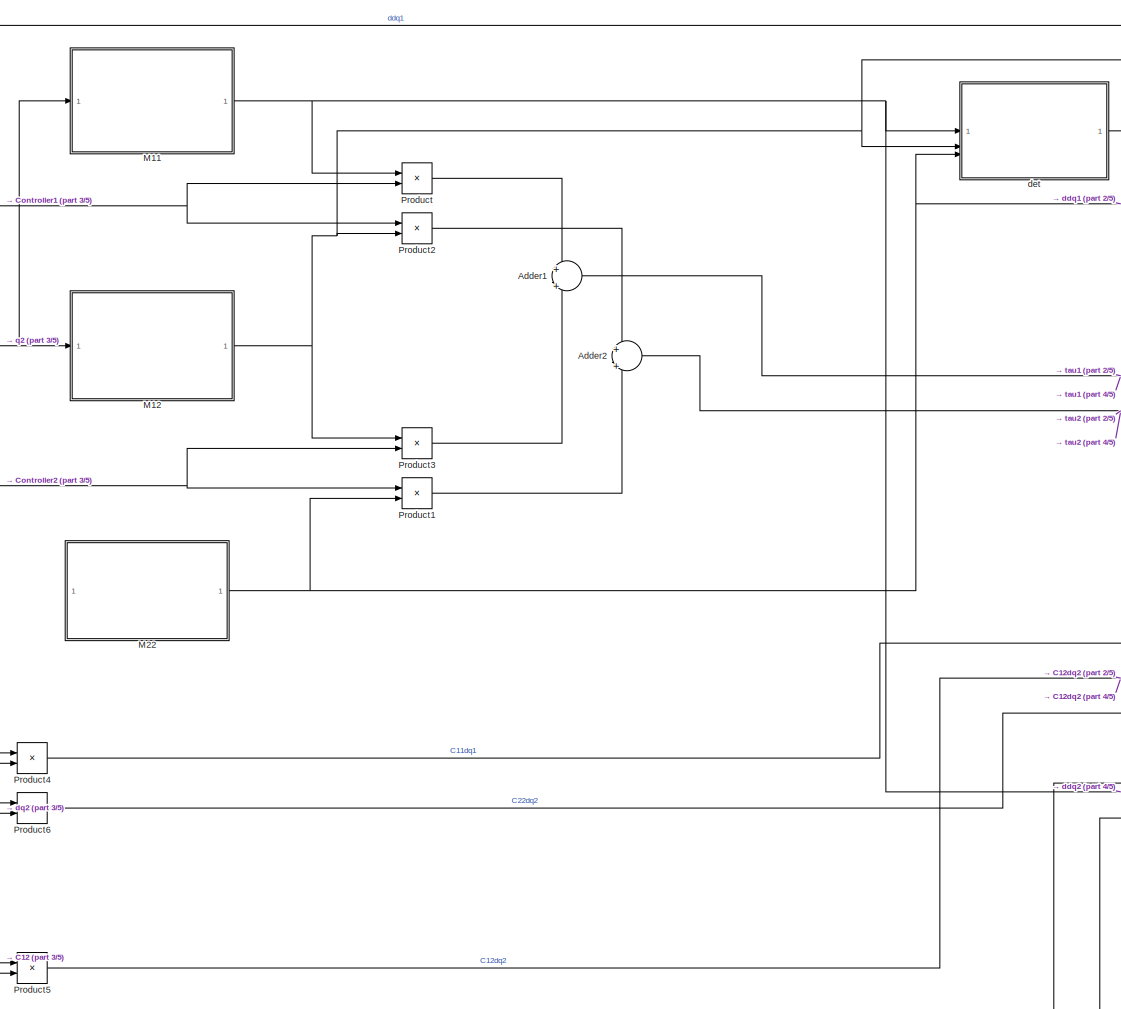
[diagram: root canvas - part 1/5, center side, full height]
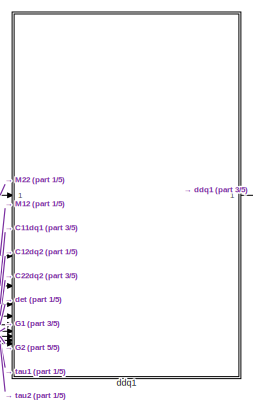
[diagram: root canvas - part 2/5, top right region]
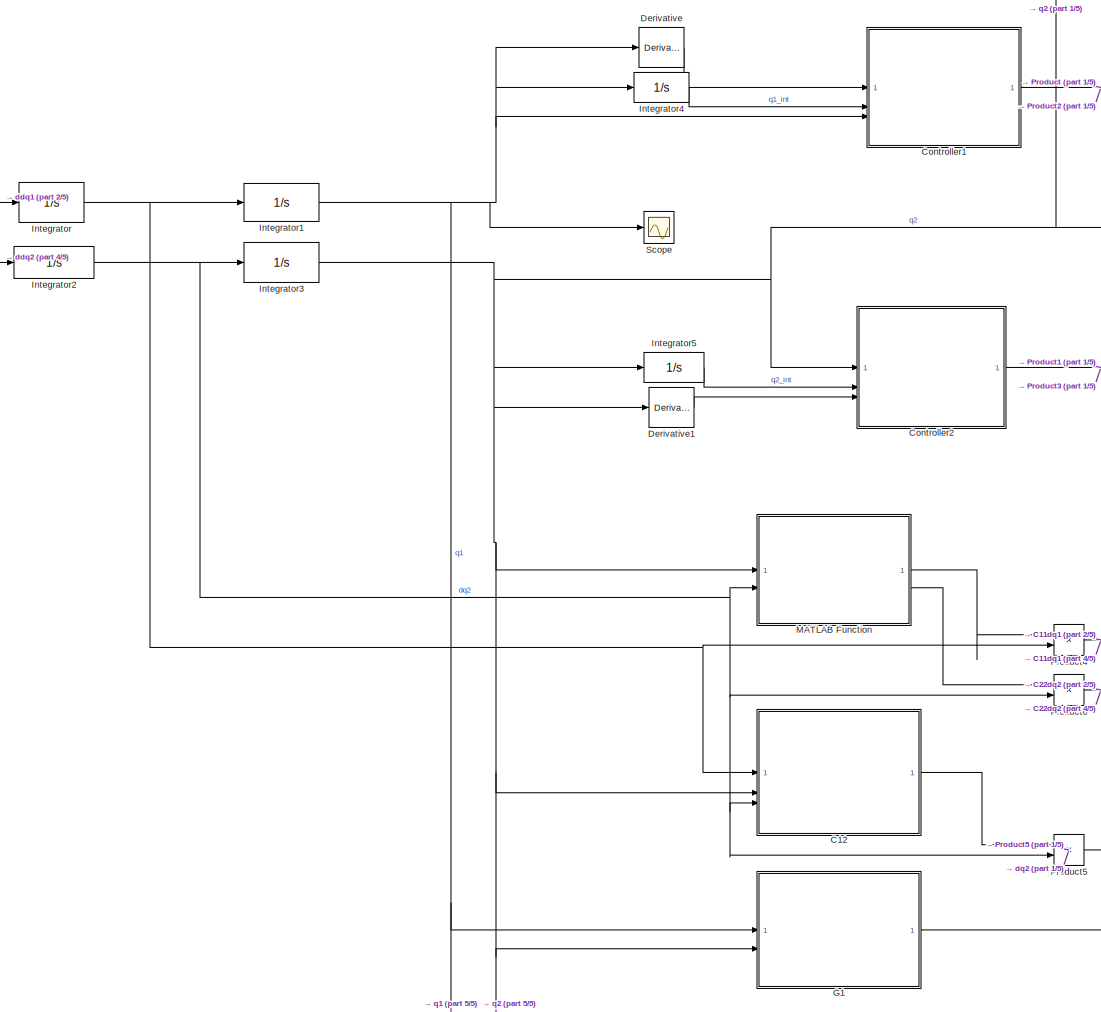
[diagram: root canvas - part 3/5, left side, full height]
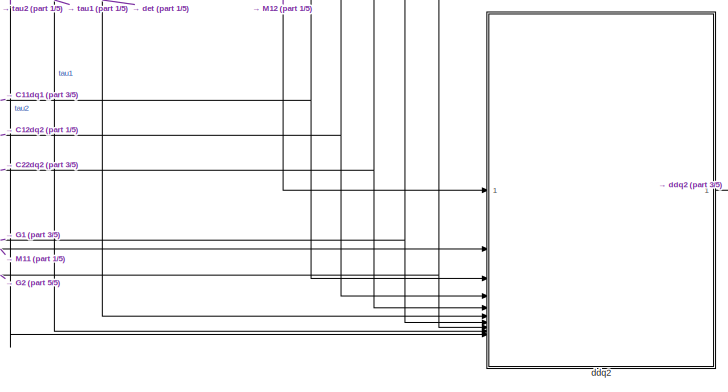
[diagram: root canvas - part 4/5, middle right region]
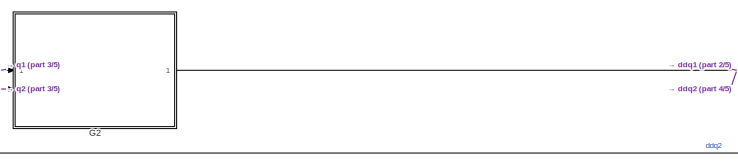
[diagram: root canvas - part 5/5, bottom center region]
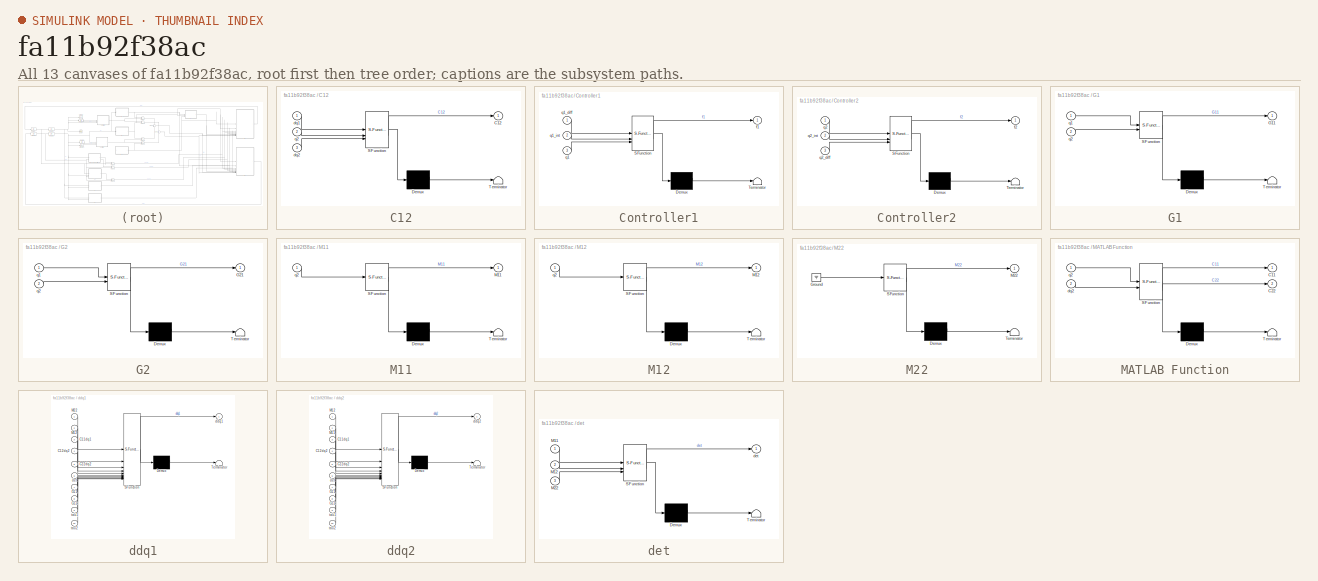
[diagram: thumbnail index - all 13 canvases of the model, root first then tree order]
MODEL slx_fa11b92f38ac
KIND model
CONFIG AbsTol = auto
CONFIG EnableMultiTasking = off
CONFIG FixedStep = auto
CONFIG MaxStep = auto
CONFIG MinStep = auto
CONFIG RelTol = 1e-3
CONFIG SampleTimeConstraint = Unconstrained
CONFIG SolverName = VariableStepAuto
CONFIG StartTime = 0.0
CONFIG StopTime = 10
BLOCK [Sum] Adder1
  Inputs = +|+
BLOCK [Sum] Adder2
  Inputs = +|+
BLOCK [SubSystem] C12
  ErrorFcn = Stateflow.Translate.translate
  PermitHierarchicalResolution = ExplicitOnly
  SFBlockType = MATLAB Function
  TreatAsAtomicUnit = on
BLOCK [Demux] C12/ Demux 
  Outputs = 1
BLOCK [S-Function] C12/ SFunction 
  EnableBusSupport = on
  FunctionName = sf_sfun
  PortCounts = [3 2]
  SFcnIsStateOwnerBlock = off
  SFunctionDeploymentMode = off
  Tag = Stateflow S-Function 5
BLOCK [Terminator] C12/ Terminator 
BLOCK [Outport] C12/C12
BLOCK [Inport] C12/dq1
BLOCK [Inport] C12/dq2
  Port = 3
BLOCK [Inport] C12/q2
  Port = 2
BLOCK [SubSystem] Controller1
  ErrorFcn = Stateflow.Translate.translate
  PermitHierarchicalResolution = ExplicitOnly
  SFBlockType = MATLAB Function
  TreatAsAtomicUnit = on
BLOCK [Demux] Controller1/ Demux 
  Outputs = 1
BLOCK [S-Function] Controller1/ SFunction 
  EnableBusSupport = on
  FunctionName = sf_sfun
  PortCounts = [3 2]
  SFcnIsStateOwnerBlock = off
  SFunctionDeploymentMode = off
  Tag = Stateflow S-Function 8
BLOCK [Terminator] Controller1/ Terminator 
BLOCK [Outport] Controller1/f1
BLOCK [Inport] Controller1/q1
  Port = 3
BLOCK [Inport] Controller1/q1_diff
BLOCK [Inport] Controller1/q1_int
  Port = 2
BLOCK [SubSystem] Controller2
  ErrorFcn = Stateflow.Translate.translate
  PermitHierarchicalResolution = ExplicitOnly
  SFBlockType = MATLAB Function
  TreatAsAtomicUnit = on
BLOCK [Demux] Controller2/ Demux 
  Outputs = 1
BLOCK [S-Function] Controller2/ SFunction 
  EnableBusSupport = on
  FunctionName = sf_sfun
  PortCounts = [3 2]
  SFcnIsStateOwnerBlock = off
  SFunctionDeploymentMode = off
  Tag = Stateflow S-Function 9
BLOCK [Terminator] Controller2/ Terminator 
BLOCK [Outport] Controller2/f2
BLOCK [Inport] Controller2/q2
BLOCK [Inport] Controller2/q2_diff
  Port = 3
BLOCK [Inport] Controller2/q2_int
  Port = 2
BLOCK [Derivative] Derivative
BLOCK [Derivative] Derivative1
BLOCK [SubSystem] G1
  ErrorFcn = Stateflow.Translate.translate
  PermitHierarchicalResolution = ExplicitOnly
  SFBlockType = MATLAB Function
  TreatAsAtomicUnit = on
BLOCK [Demux] G1/ Demux 
  Outputs = 1
BLOCK [S-Function] G1/ SFunction 
  EnableBusSupport = on
  FunctionName = sf_sfun
  PortCounts = [2 2]
  SFcnIsStateOwnerBlock = off
  SFunctionDeploymentMode = off
  Tag = Stateflow S-Function 6
BLOCK [Terminator] G1/ Terminator 
BLOCK [Outport] G1/G11
BLOCK [Inport] G1/q1
BLOCK [Inport] G1/q2
  Port = 2
BLOCK [SubSystem] G2
  ErrorFcn = Stateflow.Translate.translate
  PermitHierarchicalResolution = ExplicitOnly
  SFBlockType = MATLAB Function
  TreatAsAtomicUnit = on
BLOCK [Demux] G2/ Demux 
  Outputs = 1
BLOCK [S-Function] G2/ SFunction 
  EnableBusSupport = on
  FunctionName = sf_sfun
  PortCounts = [2 2]
  SFcnIsStateOwnerBlock = off
  SFunctionDeploymentMode = off
  Tag = Stateflow S-Function 7
BLOCK [Terminator] G2/ Terminator 
BLOCK [Outport] G2/G21
BLOCK [Inport] G2/q1
BLOCK [Inport] G2/q2
  Port = 2
BLOCK [Integrator] Integrator
BLOCK [Integrator] Integrator1
  InitialCondition = 0.1
BLOCK [Integrator] Integrator2
BLOCK [Integrator] Integrator3
  InitialCondition = 0.1
BLOCK [Integrator] Integrator4
BLOCK [Integrator] Integrator5
BLOCK [SubSystem] M11
  ErrorFcn = Stateflow.Translate.translate
  PermitHierarchicalResolution = ExplicitOnly
  SFBlockType = MATLAB Function
  TreatAsAtomicUnit = on
BLOCK [Demux] M11/ Demux 
  Outputs = 1
BLOCK [S-Function] M11/ SFunction 
  EnableBusSupport = on
  FunctionName = sf_sfun
  PortCounts = [1 2]
  SFcnIsStateOwnerBlock = off
  SFunctionDeploymentMode = off
  Tag = Stateflow S-Function 2
BLOCK [Terminator] M11/ Terminator 
BLOCK [Outport] M11/M11
BLOCK [Inport] M11/q2
BLOCK [SubSystem] M12
  ErrorFcn = Stateflow.Translate.translate
  PermitHierarchicalResolution = ExplicitOnly
  SFBlockType = MATLAB Function
  TreatAsAtomicUnit = on
BLOCK [Demux] M12/ Demux 
  Outputs = 1
BLOCK [S-Function] M12/ SFunction 
  EnableBusSupport = on
  FunctionName = sf_sfun
  PortCounts = [1 2]
  SFcnIsStateOwnerBlock = off
  SFunctionDeploymentMode = off
  Tag = Stateflow S-Function 1
BLOCK [Terminator] M12/ Terminator 
BLOCK [Outport] M12/M12
BLOCK [Inport] M12/q2
BLOCK [SubSystem] M22
  ErrorFcn = Stateflow.Translate.translate
  PermitHierarchicalResolution = ExplicitOnly
  SFBlockType = MATLAB Function
  TreatAsAtomicUnit = on
BLOCK [Demux] M22/ Demux 
  Outputs = 1
BLOCK [Ground] M22/ Ground 
BLOCK [S-Function] M22/ SFunction 
  EnableBusSupport = on
  FunctionName = sf_sfun
  PortCounts = [1 2]
  SFcnIsStateOwnerBlock = off
  SFunctionDeploymentMode = off
  Tag = Stateflow S-Function 3
BLOCK [Terminator] M22/ Terminator 
BLOCK [Outport] M22/M22
BLOCK [SubSystem] MATLAB Function
  ErrorFcn = Stateflow.Translate.translate
  PermitHierarchicalResolution = ExplicitOnly
  SFBlockType = MATLAB Function
  TreatAsAtomicUnit = on
BLOCK [Demux] MATLAB Function/ Demux 
  Outputs = 1
BLOCK [S-Function] MATLAB Function/ SFunction 
  EnableBusSupport = on
  FunctionName = sf_sfun
  PortCounts = [2 3]
  SFcnIsStateOwnerBlock = off
  SFunctionDeploymentMode = off
  Tag = Stateflow S-Function 4
BLOCK [Terminator] MATLAB Function/ Terminator 
BLOCK [Outport] MATLAB Function/C11
BLOCK [Outport] MATLAB Function/C22
  Port = 2
BLOCK [Inport] MATLAB Function/dq2
  Port = 2
BLOCK [Inport] MATLAB Function/q2
BLOCK [Product] Product
BLOCK [Product] Product1
BLOCK [Product] Product2
BLOCK [Product] Product3
BLOCK [Product] Product4
BLOCK [Product] Product5
BLOCK [Product] Product6
BLOCK [Scope] Scope
  Floating = off
  NumInputPorts = 1
  ScopeSpecificationString = Simulink.scopes.TimeScopeBlockCfg('CurrentConfiguration', extmgr.ConfigurationSet(extmgr.Configuration('Core','General UI',true),extmgr.Configuration('Core','Source UI',true),extmgr.Configuration('Sources','WiredSimulink',true),extmgr.Configuration('Visuals','Time Domain',true,'SerializedDisplays',{struct('MinYLimReal','-3.26362','MaxYLimReal','3.35834','YLabelReal','','MinYLimMag','0.00000','MaxY...<+1438ch>
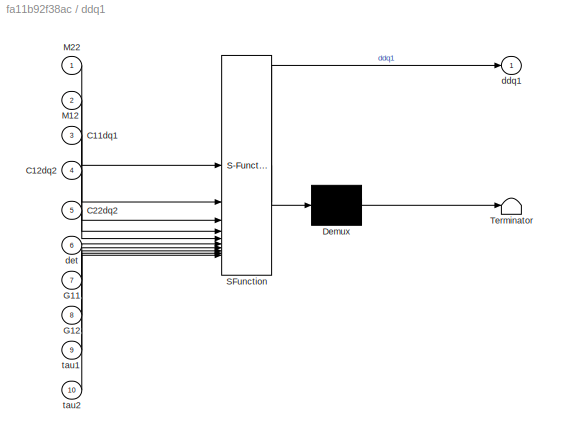
BLOCK [SubSystem] ddq1
  ErrorFcn = Stateflow.Translate.translate
  PermitHierarchicalResolution = ExplicitOnly
  SFBlockType = MATLAB Function
  TreatAsAtomicUnit = on
BLOCK [Demux] ddq1/ Demux 
  Outputs = 1
BLOCK [S-Function] ddq1/ SFunction 
  EnableBusSupport = on
  FunctionName = sf_sfun
  PortCounts = [10 2]
  SFcnIsStateOwnerBlock = off
  SFunctionDeploymentMode = off
  Tag = Stateflow S-Function 11
BLOCK [Terminator] ddq1/ Terminator 
BLOCK [Inport] ddq1/C11dq1
  Port = 3
BLOCK [Inport] ddq1/C12dq2
  Port = 4
BLOCK [Inport] ddq1/C22dq2
  Port = 5
BLOCK [Inport] ddq1/G11
  Port = 7
BLOCK [Inport] ddq1/G12
  Port = 8
BLOCK [Inport] ddq1/M12
  Port = 2
BLOCK [Inport] ddq1/M22
BLOCK [Outport] ddq1/ddq1
BLOCK [Inport] ddq1/det
  Port = 6
BLOCK [Inport] ddq1/tau1
  Port = 9
BLOCK [Inport] ddq1/tau2
  Port = 10
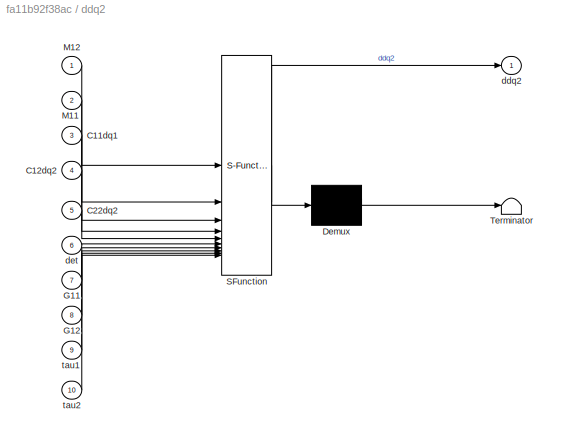
BLOCK [SubSystem] ddq2
  ErrorFcn = Stateflow.Translate.translate
  PermitHierarchicalResolution = ExplicitOnly
  SFBlockType = MATLAB Function
  TreatAsAtomicUnit = on
BLOCK [Demux] ddq2/ Demux 
  Outputs = 1
BLOCK [S-Function] ddq2/ SFunction 
  EnableBusSupport = on
  FunctionName = sf_sfun
  PortCounts = [10 2]
  SFcnIsStateOwnerBlock = off
  SFunctionDeploymentMode = off
  Tag = Stateflow S-Function 12
BLOCK [Terminator] ddq2/ Terminator 
BLOCK [Inport] ddq2/C11dq1
  Port = 3
BLOCK [Inport] ddq2/C12dq2
  Port = 4
BLOCK [Inport] ddq2/C22dq2
  Port = 5
BLOCK [Inport] ddq2/G11
  Port = 7
BLOCK [Inport] ddq2/G12
  Port = 8
BLOCK [Inport] ddq2/M11
  Port = 2
BLOCK [Inport] ddq2/M12
BLOCK [Outport] ddq2/ddq2
BLOCK [Inport] ddq2/det
  Port = 6
BLOCK [Inport] ddq2/tau1
  Port = 9
BLOCK [Inport] ddq2/tau2
  Port = 10
BLOCK [SubSystem] det
  ErrorFcn = Stateflow.Translate.translate
  PermitHierarchicalResolution = ExplicitOnly
  SFBlockType = MATLAB Function
  TreatAsAtomicUnit = on
BLOCK [Demux] det/ Demux 
  Outputs = 1
BLOCK [S-Function] det/ SFunction 
  EnableBusSupport = on
  FunctionName = sf_sfun
  PortCounts = [3 2]
  SFcnIsStateOwnerBlock = off
  SFunctionDeploymentMode = off
  Tag = Stateflow S-Function 10
BLOCK [Terminator] det/ Terminator 
BLOCK [Inport] det/M11
BLOCK [Inport] det/M12
  Port = 2
BLOCK [Inport] det/M22
  Port = 3
BLOCK [Outport] det/det
NET Adder1:1 -> ddq1:9, ddq2:9
NET Adder2:1 -> ddq1:10, ddq2:10
LINE C12:1 -> Product5:1
NET Controller1:1 -> Product2:1, Product:2
NET Controller2:1 -> Product1:1, Product3:2
LINE Derivative1:1 -> Controller2:3
LINE Derivative:1 -> Controller1:1
NET G1:1 -> ddq1:7, ddq2:7
NET G2:1 -> ddq1:8, ddq2:8
NET Integrator1:1 -> Controller1:3, Derivative:1, G1:1, G2:1, Integrator4:1, Scope:1
NET Integrator2:1 -> C12:3, Integrator3:1, MATLAB Function:2, Product5:2, Product6:2
NET Integrator3:1 -> C12:2, Controller2:1, Derivative1:1, G1:2, G2:2, Integrator5:1, M11:1, M12:1, MATLAB Function:1
LINE Integrator4:1 -> Controller1:2
LINE Integrator5:1 -> Controller2:2
NET Integrator:1 -> C12:1, Integrator1:1, Product4:2
NET M11:1 -> Product:1, ddq2:2, det:1
NET M12:1 -> Product2:2, Product3:1, ddq1:2, ddq2:1, det:2
NET M22:1 -> Product1:2, ddq1:1, det:3
LINE MATLAB Function:1 -> Product4:1
LINE MATLAB Function:2 -> Product6:1
LINE Product1:1 -> Adder2:2
LINE Product2:1 -> Adder2:1
LINE Product3:1 -> Adder1:2
NET Product4:1 -> ddq1:3, ddq2:3
NET Product5:1 -> ddq1:4, ddq2:4
NET Product6:1 -> ddq1:5, ddq2:5
LINE Product:1 -> Adder1:1
LINE ddq1:1 -> Integrator:1
LINE ddq2:1 -> Integrator2:1
NET det:1 -> ddq1:6, ddq2:6
note: NET lines group one-source signal fan-out (src -> all destinations, sorted); 1:1 wires keep LINE
CHART ddq2 states=1 transitions=1
  STATE_LABEL 'eML_blk_kernel()'
  STATE_LABEL 'SCRIPT:\nfunction ddq2 = fcn(M12,M11,C11dq1,C12dq2,C22dq2,det,G11,G12,tau1,tau2)\nZ1 = (M12*(C11dq1+C12dq2)- M11*C22dq2)./det;\nZ2 = (M12*G11 - M11*G12)./det;\nZ3 = (-M12*tau1 + M11*tau2)./det;\nddq2 = Z1 + Z2 + Z3 ;\nend \n\n'
CHART M12 states=1 transitions=1
  STATE_LABEL 'eML_blk_kernel()'
  STATE_LABEL 'SCRIPT:\nfunction M12 = M12(q2)\nm_2 = 5;\nl_1 = 0.2;\nl_2 = 0.1;\nM12 = m_2*l_2*(l_2 + l_1*cos(q2));\nend '
CHART M11 states=1 transitions=1
  STATE_LABEL 'eML_blk_kernel()'
  STATE_LABEL 'SCRIPT:\nfunction M11 = M11(q2)\nm_1 = 10;\nm_2 = 5;\nl_1 = 0.2;\nl_2 = 0.1;\nM11 = (m_1 + m_2)*l_1^2 + m_2*l_2*(l_2 + 2*l_1*cos(q2));\nend '
CHART M22 states=1 transitions=1
  STATE_LABEL 'eML_blk_kernel()'
  STATE_LABEL 'SCRIPT:\nfunction M22 = M22()\nm_2 = 5;\nl_2 = 0.1;\nM22 = m_2*l_2^2;\nend '
CHART MATLAB Function states=1 transitions=1
  STATE_LABEL 'eML_blk_kernel()'
  STATE_LABEL 'SCRIPT:\nfunction [C11,C22] = C11(q2,dq2)\nm_2 = 5;\nl_1 = 0.2;\nl_2 = 0.1;\nC11 = -(m_2*l_1*l_2*sin(q2)*dq2);\nC22 = -C11;\nend'
CHART C12 states=1 transitions=1
  STATE_LABEL 'eML_blk_kernel()'
  STATE_LABEL 'SCRIPT:\nfunction C12 = C12(dq1,q2, dq2)\nm_2 = 5;\nl_1 = 0.2;\nl_2 = 0.1;\nC12 = -m_2*l_1*l_2*sin(q2)*(dq1+dq2);\nend'
CHART G1 states=1 transitions=1
  STATE_LABEL 'eML_blk_kernel()'
  STATE_LABEL 'SCRIPT:\nfunction G11 = G11(q1, q2)\nm_1 = 10;\nm_2 = 5;\nl_1 = 0.2;\nl_2 = 0.1;\ng = 9.81;\nG11 = m_1*l_1*g*cos(q1) + m_2*g*(l_2*cos(q1+q2) + l_1*cos(q1));\nend '
CHART G2 states=1 transitions=1
  STATE_LABEL 'eML_blk_kernel()'
  STATE_LABEL 'SCRIPT:\nfunction G21 = G21(q1, q2)\nm_2 = 5;\nl_2 = 0.1;\ng = 9.81;\nG21 = m_2*g*l_2*cos(q1+q2);\nend '
CHART Controller1 states=1 transitions=1
  STATE_LABEL 'eML_blk_kernel()'
  STATE_LABEL 'SCRIPT:\nfunction f1 = Controller1(q1_diff, q1_int, q1)\nKp=50;\nKi=0;\nKd=0;\nq_desired=0;\nf1 = Kp * (q_desired - q1) - Kd * q1_diff - Ki * q1_int;\nend'
CHART Controller2 states=1 transitions=1
  STATE_LABEL 'eML_blk_kernel()'
  STATE_LABEL 'SCRIPT:\nfunction f2 = Controller2(q2, q2_int, q2_diff)\nKp=50;\nKi=0;\nKd=0;\nq_desired=0;\nf2 = Kp * (q_desired - q2) - Kd * q2_diff - Ki * q2_int;\nend'
CHART det states=1 transitions=1
  STATE_LABEL 'eML_blk_kernel()'
  STATE_LABEL 'SCRIPT:\nfunction det = det_M(M11,M12,M22)\ndet = M11*M22 - M12^2;\nend\n'
CHART ddq1 states=1 transitions=1
  STATE_LABEL 'eML_blk_kernel()'
  STATE_LABEL 'SCRIPT:\nfunction ddq1 = fcn(M22,M12,C11dq1,C12dq2,C22dq2,det,G11,G12,tau1,tau2)\nZ1 = (-M22*(C11dq1+C12dq2)+M12*C22dq2)./det;\nZ2 = (-M22*G11+M12*G12)./det;\nZ3 = (M22*tau1 - M12*tau2)./det;\nddq1 = Z1 + Z2 + Z3 ;\nend \n\n'
CHART  states=0 transitions=0
CHART  states=0 transitions=0
CHART  states=0 transitions=0
CHART  states=0 transitions=0
CHART  states=0 transitions=0
CHART  states=0 transitions=0
CHART  states=0 transitions=0
CHART  states=0 transitions=0
CHART  states=0 transitions=0
CHART  states=0 transitions=0
CHART  states=0 transitions=0
CHART  states=0 transitions=0
